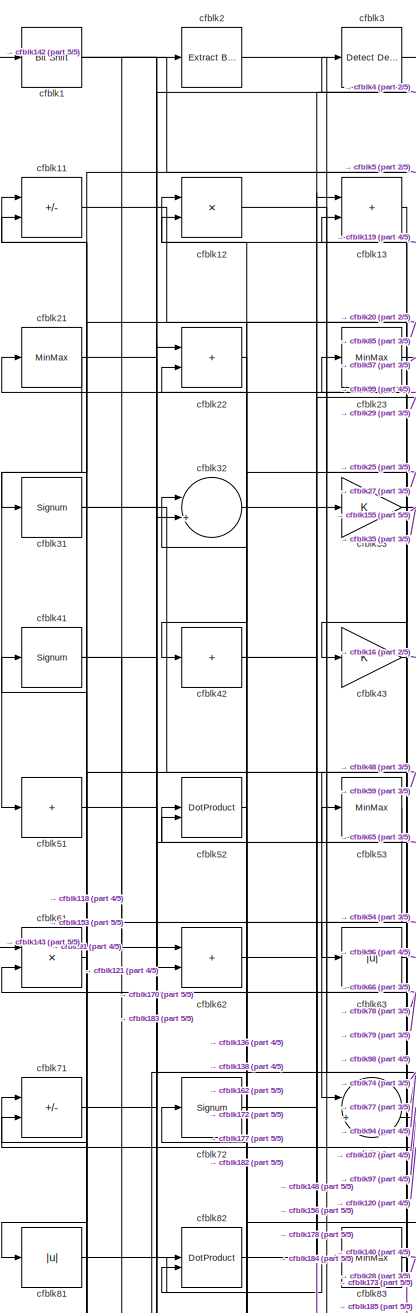
[diagram: root canvas - part 1/5, top left region]
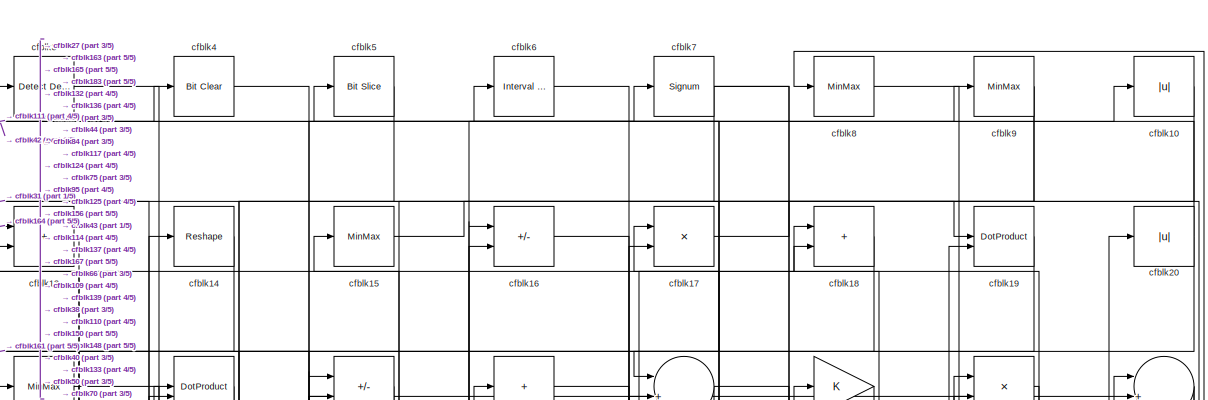
[diagram: root canvas - part 2/5, full width, top band]
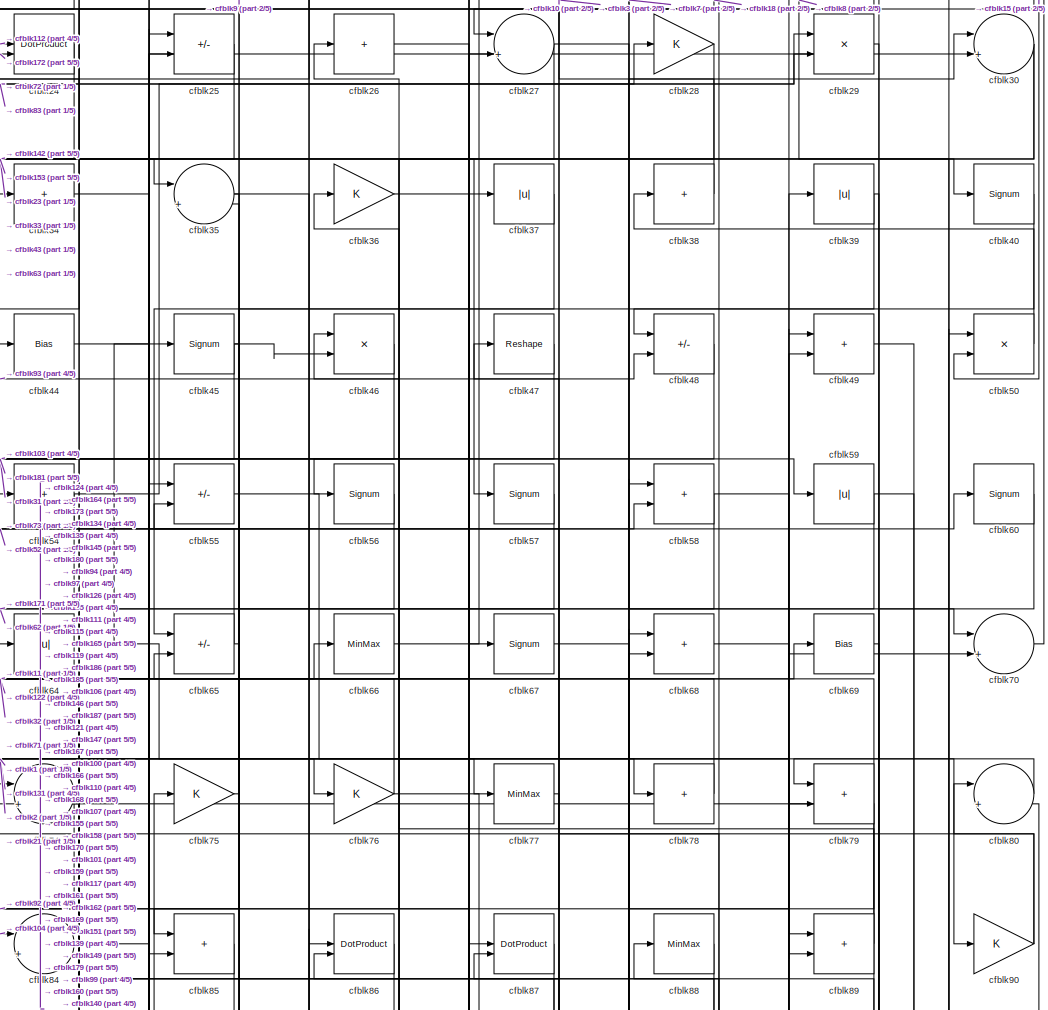
[diagram: root canvas - part 3/5, top center region]
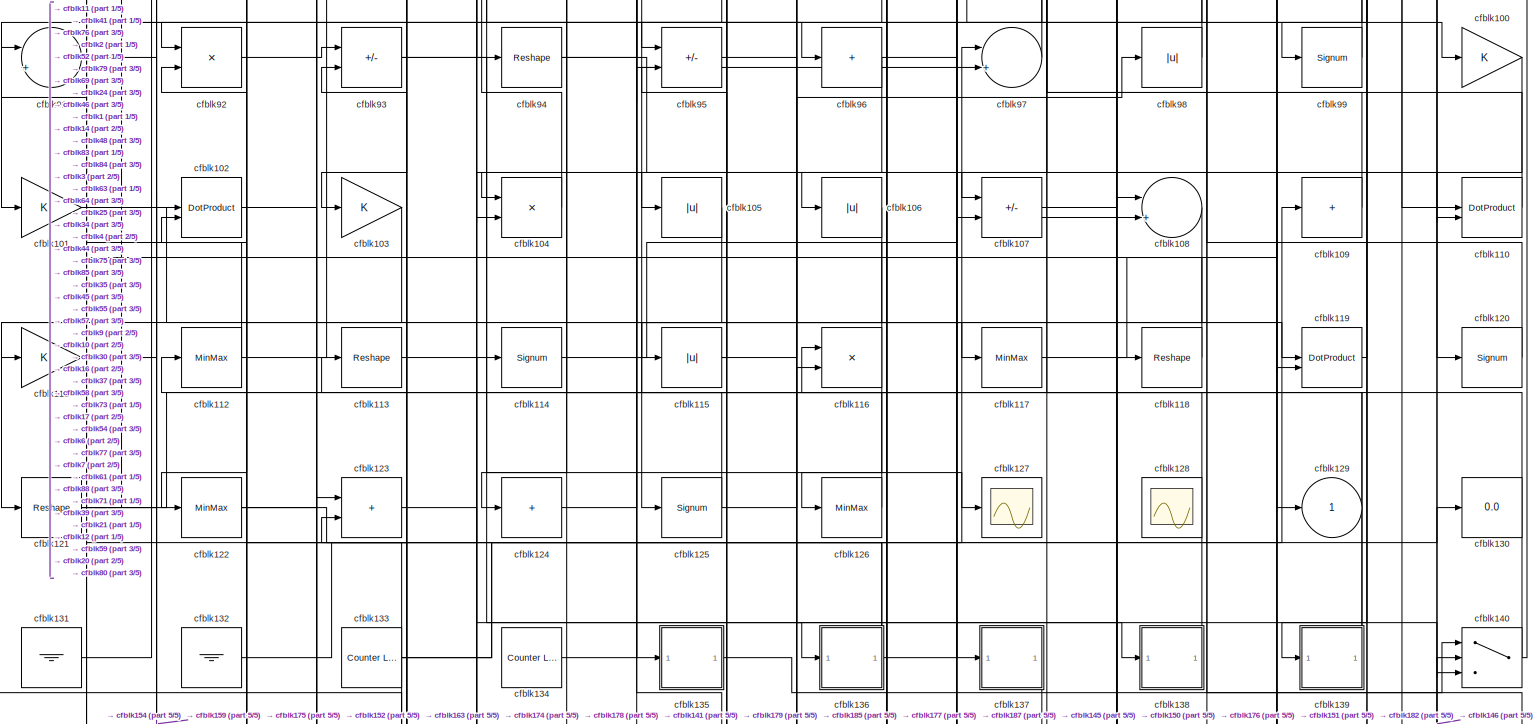
[diagram: root canvas - part 4/5, full width, middle band]
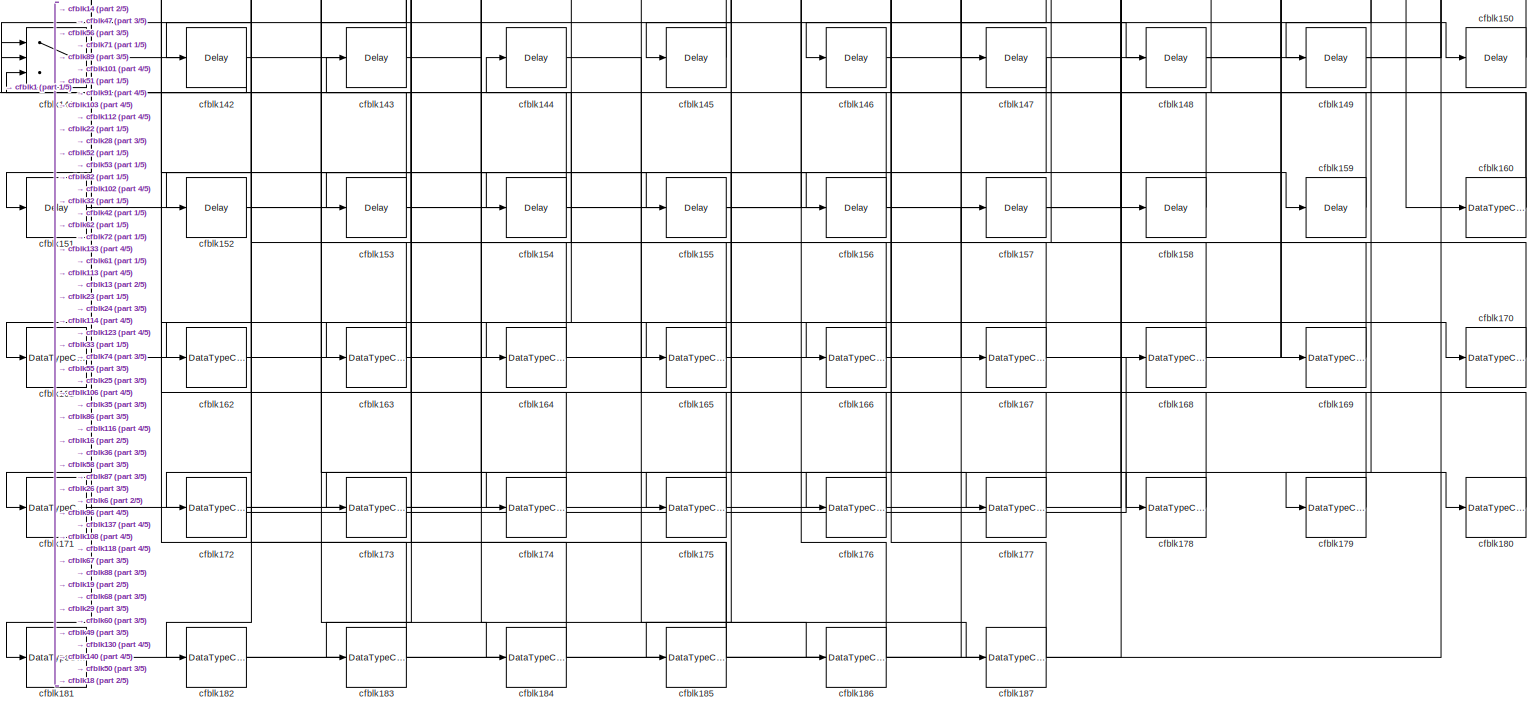
[diagram: root canvas - part 5/5, full width, bottom band]
MODEL slx_fcb4e1f6270d
KIND model
CONFIG AbsTol = auto
CONFIG EnableMultiTasking = off
CONFIG FixedStep = auto
CONFIG MaxStep = auto
CONFIG MinStep = auto
CONFIG RelTol = 1e-3
CONFIG SampleTimeConstraint = Unconstrained
CONFIG SolverName = VariableStepAuto
CONFIG StartTime = 0.0
CONFIG StopTime = 10.0
BLOCK [Reference] cfblk1  REF=hdlsllib/Logic and Bit
Operations/Bit Shift
  SourceBlock = hdlsllib/Logic and Bit\nOperations/Bit Shift
  SourceType = Bit Shift
BLOCK [Abs] cfblk10
  SaturateOnIntegerOverflow = off
BLOCK [Gain] cfblk100
BLOCK [Gain] cfblk101
BLOCK [DotProduct] cfblk102
  OutDataTypeStr = Inherit: Inherit via internal rule
BLOCK [Gain] cfblk103
BLOCK [Product] cfblk104
  Inputs = */
  RndMeth = Zero
  SaturateOnIntegerOverflow = on
BLOCK [Abs] cfblk105
  SaturateOnIntegerOverflow = off
BLOCK [Abs] cfblk106
  SaturateOnIntegerOverflow = off
BLOCK [Sum] cfblk107
  IconShape = rectangular
  Inputs = +-
BLOCK [Sum] cfblk108
  Inputs = |++
BLOCK [Sum] cfblk109
  IconShape = rectangular
  Inputs = +
BLOCK [Sum] cfblk11
  IconShape = rectangular
  Inputs = +-
BLOCK [DotProduct] cfblk110
  OutDataTypeStr = Inherit: Inherit via internal rule
BLOCK [Gain] cfblk111
BLOCK [MinMax] cfblk112
BLOCK [Reshape] cfblk113
BLOCK [Signum] cfblk114
BLOCK [Abs] cfblk115
  SaturateOnIntegerOverflow = off
BLOCK [Product] cfblk116
  Inputs = */
  RndMeth = Zero
  SaturateOnIntegerOverflow = on
BLOCK [MinMax] cfblk117
BLOCK [Reshape] cfblk118
BLOCK [DotProduct] cfblk119
  OutDataTypeStr = Inherit: Inherit via internal rule
BLOCK [Product] cfblk12
  Inputs = */
  RndMeth = Zero
  SaturateOnIntegerOverflow = on
BLOCK [Signum] cfblk120
BLOCK [Reshape] cfblk121
BLOCK [MinMax] cfblk122
BLOCK [Sum] cfblk123
  IconShape = rectangular
BLOCK [Sum] cfblk124
  IconShape = rectangular
  Inputs = +
BLOCK [Signum] cfblk125
BLOCK [MinMax] cfblk126
BLOCK [Scope] cfblk127
  Floating = off
  NumInputPorts = 1
  ScopeSpecificationString = Simulink.scopes.TimeScopeBlockCfg('CurrentConfiguration', extmgr.ConfigurationSet(extmgr.Configuration('Core','General UI',true),extmgr.Configuration('Core','Source UI',true),extmgr.Configuration('Sources','WiredSimulink',true,'DataLoggingVariableName','ScopeData2','DataLoggingSaveFormat','Array','DataLoggingLimitDataPoints',true,'DataLoggingDecimation','1'),extmgr.Configuration('Visuals','Time Do...<+868ch>
BLOCK [Scope] cfblk128
  Floating = on
  NumInputPorts = 1
  ScopeSpecificationString = Simulink.scopes.TimeScopeBlockCfg('CurrentConfiguration', extmgr.ConfigurationSet(extmgr.Configuration('Core','General UI',true,'FigureColor',[0.156862745098039 0.156862745098039 0.156862745098039]),extmgr.Configuration('Core','Source UI',true),extmgr.Configuration('Sources','WiredSimulink',true,'DataLoggingVariableName','ScopeData1','DataLoggingSaveFormat','StructureWithTime','DataLoggingLimitDat...<+2713ch>
BLOCK [Outport] cfblk129
  VectorParamsAs1DForOutWhenUnconnected = off
BLOCK [Sum] cfblk13
  IconShape = rectangular
BLOCK [Display] cfblk130
  Decimation = 1
BLOCK [Ground] cfblk131
BLOCK [Ground] cfblk132
BLOCK [Reference] cfblk133  REF=hdlsllib/Sources/Counter
Limited
  SourceBlock = hdlsllib/Sources/Counter\nLimited
  SourceType = Counter Limited
BLOCK [Reference] cfblk134  REF=hdlsllib/Sources/Counter
Limited
  SourceBlock = hdlsllib/Sources/Counter\nLimited
  SourceType = Counter Limited
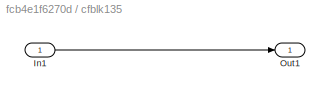
BLOCK [SubSystem] cfblk135
  LibrarySourceBlock = hdlsllib/Ports &\nSubsystems/Subsystem
BLOCK [Inport] cfblk135/In1
BLOCK [Outport] cfblk135/Out1
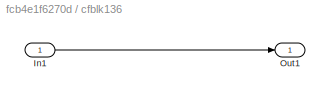
BLOCK [SubSystem] cfblk136
  LibrarySourceBlock = hdlsllib/Ports &\nSubsystems/Subsystem
BLOCK [Inport] cfblk136/In1
BLOCK [Outport] cfblk136/Out1
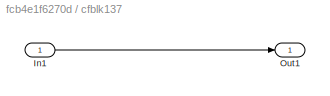
BLOCK [SubSystem] cfblk137
  LibrarySourceBlock = hdlsllib/Ports &\nSubsystems/Subsystem
BLOCK [Inport] cfblk137/In1
BLOCK [Outport] cfblk137/Out1
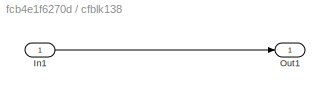
BLOCK [SubSystem] cfblk138
  LibrarySourceBlock = hdlsllib/Ports &\nSubsystems/Subsystem
BLOCK [Inport] cfblk138/In1
BLOCK [Outport] cfblk138/Out1
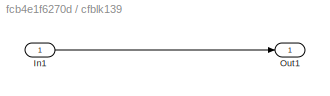
BLOCK [SubSystem] cfblk139
  LibrarySourceBlock = hdlsllib/Ports &\nSubsystems/Subsystem
BLOCK [Inport] cfblk139/In1
BLOCK [Outport] cfblk139/Out1
BLOCK [Reshape] cfblk14
BLOCK [Switch] cfblk140
  InputSameDT = off
  SaturateOnIntegerOverflow = off
BLOCK [Switch] cfblk141
  InputSameDT = off
  SaturateOnIntegerOverflow = off
BLOCK [Delay] cfblk142
  InputPortMap = u0
  SampleTime = 1
BLOCK [Delay] cfblk143
  InputPortMap = u0
  SampleTime = 1
BLOCK [Delay] cfblk144
  InputPortMap = u0
  SampleTime = 1
BLOCK [Delay] cfblk145
  InputPortMap = u0
  SampleTime = 1
BLOCK [Delay] cfblk146
  InputPortMap = u0
  SampleTime = 1
BLOCK [Delay] cfblk147
  InputPortMap = u0
  SampleTime = 1
BLOCK [Delay] cfblk148
  InputPortMap = u0
  SampleTime = 1
BLOCK [Delay] cfblk149
  InputPortMap = u0
  SampleTime = 1
BLOCK [MinMax] cfblk15
BLOCK [Delay] cfblk150
  InputPortMap = u0
  SampleTime = 1
BLOCK [Delay] cfblk151
  InputPortMap = u0
  SampleTime = 1
BLOCK [Delay] cfblk152
  InputPortMap = u0
  SampleTime = 1
BLOCK [Delay] cfblk153
  InputPortMap = u0
  SampleTime = 1
BLOCK [Delay] cfblk154
  InputPortMap = u0
  SampleTime = 1
BLOCK [Delay] cfblk155
  InputPortMap = u0
  SampleTime = 1
BLOCK [Delay] cfblk156
  InputPortMap = u0
  SampleTime = 1
BLOCK [Delay] cfblk157
  InputPortMap = u0
  SampleTime = 1
BLOCK [Delay] cfblk158
  InputPortMap = u0
  SampleTime = 1
BLOCK [Delay] cfblk159
  InputPortMap = u0
  SampleTime = 1
BLOCK [Sum] cfblk16
  IconShape = rectangular
  Inputs = +-
BLOCK [DataTypeConversion] cfblk160
  RndMeth = Floor
  SaturateOnIntegerOverflow = off
BLOCK [DataTypeConversion] cfblk161
  OutDataTypeStr = uint8
  RndMeth = Floor
  SaturateOnIntegerOverflow = off
BLOCK [DataTypeConversion] cfblk162
  OutDataTypeStr = uint8
  RndMeth = Floor
  SaturateOnIntegerOverflow = off
BLOCK [DataTypeConversion] cfblk163
  OutDataTypeStr = uint8
  RndMeth = Floor
  SaturateOnIntegerOverflow = off
BLOCK [DataTypeConversion] cfblk164
  OutDataTypeStr = uint8
  RndMeth = Floor
  SaturateOnIntegerOverflow = off
BLOCK [DataTypeConversion] cfblk165
  OutDataTypeStr = uint8
  RndMeth = Floor
  SaturateOnIntegerOverflow = off
BLOCK [DataTypeConversion] cfblk166
  OutDataTypeStr = uint8
  RndMeth = Floor
  SaturateOnIntegerOverflow = off
BLOCK [DataTypeConversion] cfblk167
  OutDataTypeStr = uint8
  RndMeth = Floor
  SaturateOnIntegerOverflow = off
BLOCK [DataTypeConversion] cfblk168
  OutDataTypeStr = uint8
  RndMeth = Floor
  SaturateOnIntegerOverflow = off
BLOCK [DataTypeConversion] cfblk169
  OutDataTypeStr = uint8
  RndMeth = Floor
  SaturateOnIntegerOverflow = off
BLOCK [Product] cfblk17
  Inputs = */
  RndMeth = Zero
  SaturateOnIntegerOverflow = on
BLOCK [DataTypeConversion] cfblk170
  OutDataTypeStr = uint8
  RndMeth = Floor
  SaturateOnIntegerOverflow = off
BLOCK [DataTypeConversion] cfblk171
  OutDataTypeStr = uint8
  RndMeth = Floor
  SaturateOnIntegerOverflow = off
BLOCK [DataTypeConversion] cfblk172
  RndMeth = Floor
  SaturateOnIntegerOverflow = off
BLOCK [DataTypeConversion] cfblk173
  OutDataTypeStr = uint8
  RndMeth = Floor
  SaturateOnIntegerOverflow = off
BLOCK [DataTypeConversion] cfblk174
  OutDataTypeStr = uint8
  RndMeth = Floor
  SaturateOnIntegerOverflow = off
BLOCK [DataTypeConversion] cfblk175
  OutDataTypeStr = uint8
  RndMeth = Floor
  SaturateOnIntegerOverflow = off
BLOCK [DataTypeConversion] cfblk176
  OutDataTypeStr = uint8
  RndMeth = Floor
  SaturateOnIntegerOverflow = off
BLOCK [DataTypeConversion] cfblk177
  OutDataTypeStr = uint8
  RndMeth = Floor
  SaturateOnIntegerOverflow = off
BLOCK [DataTypeConversion] cfblk178
  OutDataTypeStr = uint8
  RndMeth = Floor
  SaturateOnIntegerOverflow = off
BLOCK [DataTypeConversion] cfblk179
  OutDataTypeStr = uint8
  RndMeth = Floor
  SaturateOnIntegerOverflow = off
BLOCK [Sum] cfblk18
  IconShape = rectangular
BLOCK [DataTypeConversion] cfblk180
  OutDataTypeStr = uint8
  RndMeth = Floor
  SaturateOnIntegerOverflow = off
BLOCK [DataTypeConversion] cfblk181
  OutDataTypeStr = uint8
  RndMeth = Floor
  SaturateOnIntegerOverflow = off
BLOCK [DataTypeConversion] cfblk182
  OutDataTypeStr = uint8
  RndMeth = Floor
  SaturateOnIntegerOverflow = off
BLOCK [DataTypeConversion] cfblk183
  OutDataTypeStr = uint8
  RndMeth = Floor
  SaturateOnIntegerOverflow = off
BLOCK [DataTypeConversion] cfblk184
  OutDataTypeStr = uint8
  RndMeth = Floor
  SaturateOnIntegerOverflow = off
BLOCK [DataTypeConversion] cfblk185
  RndMeth = Floor
  SaturateOnIntegerOverflow = off
BLOCK [DataTypeConversion] cfblk186
  OutDataTypeStr = uint8
  RndMeth = Floor
  SaturateOnIntegerOverflow = off
BLOCK [DataTypeConversion] cfblk187
  OutDataTypeStr = uint8
  RndMeth = Floor
  SaturateOnIntegerOverflow = off
BLOCK [DotProduct] cfblk19
  OutDataTypeStr = Inherit: Inherit via internal rule
BLOCK [Reference] cfblk2  REF=simulink/Logic and Bit
Operations/Extract Bits
  LibrarySourceBlock = hdlsllib/Logic and Bit\nOperations/Extract Bits
  SourceBlock = simulink/Logic and Bit\nOperations/Extract Bits
  SourceType = Extract Bits
BLOCK [Abs] cfblk20
  SaturateOnIntegerOverflow = off
BLOCK [MinMax] cfblk21
BLOCK [Sum] cfblk22
  IconShape = rectangular
BLOCK [MinMax] cfblk23
BLOCK [DotProduct] cfblk24
  OutDataTypeStr = Inherit: Inherit via internal rule
BLOCK [Sum] cfblk25
  IconShape = rectangular
  Inputs = +-
BLOCK [Sum] cfblk26
  IconShape = rectangular
  Inputs = +
BLOCK [Sum] cfblk27
  Inputs = |++
BLOCK [Gain] cfblk28
BLOCK [Product] cfblk29
  Inputs = */
  RndMeth = Zero
  SaturateOnIntegerOverflow = on
BLOCK [Reference] cfblk3  REF=simulink/Logic and Bit
Operations/Detect
Decrease
  LibrarySourceBlock = hdlsllib/Logic and Bit\nOperations/Detect\nDecrease
  SourceBlock = simulink/Logic and Bit\nOperations/Detect\nDecrease
  SourceType = Detect Decrease
BLOCK [Sum] cfblk30
  Inputs = |++
BLOCK [Signum] cfblk31
BLOCK [Sum] cfblk32
  Inputs = |++
BLOCK [Gain] cfblk33
BLOCK [Sum] cfblk34
  IconShape = rectangular
  Inputs = +
BLOCK [Sum] cfblk35
  Inputs = |++
BLOCK [Gain] cfblk36
BLOCK [Abs] cfblk37
  SaturateOnIntegerOverflow = off
BLOCK [Sum] cfblk38
  IconShape = rectangular
  Inputs = +
BLOCK [Abs] cfblk39
  SaturateOnIntegerOverflow = off
BLOCK [Reference] cfblk4  REF=simulink/Logic and Bit
Operations/Bit Clear
  LibrarySourceBlock = hdlsllib/Logic and Bit\nOperations/Bit Clear
  SourceBlock = simulink/Logic and Bit\nOperations/Bit Clear
  SourceType = Bit Clear
BLOCK [Signum] cfblk40
BLOCK [Signum] cfblk41
BLOCK [Sum] cfblk42
  IconShape = rectangular
  Inputs = +
BLOCK [Gain] cfblk43
BLOCK [Bias] cfblk44
  Bias = 0.0
  SaturateOnIntegerOverflow = off
BLOCK [Signum] cfblk45
BLOCK [Product] cfblk46
  Inputs = */
  RndMeth = Zero
  SaturateOnIntegerOverflow = on
BLOCK [Reshape] cfblk47
BLOCK [Sum] cfblk48
  IconShape = rectangular
  Inputs = +-
BLOCK [Sum] cfblk49
  IconShape = rectangular
BLOCK [Reference] cfblk5  REF=hdlsllib/Logic and Bit
Operations/Bit Slice
  SourceBlock = hdlsllib/Logic and Bit\nOperations/Bit Slice
  SourceType = Bit Slice
BLOCK [Product] cfblk50
  Inputs = */
  RndMeth = Zero
  SaturateOnIntegerOverflow = on
BLOCK [Sum] cfblk51
  IconShape = rectangular
  Inputs = +
BLOCK [DotProduct] cfblk52
  OutDataTypeStr = Inherit: Inherit via internal rule
BLOCK [MinMax] cfblk53
BLOCK [Sum] cfblk54
  IconShape = rectangular
  Inputs = +
BLOCK [Sum] cfblk55
  IconShape = rectangular
  Inputs = +-
BLOCK [Signum] cfblk56
BLOCK [Signum] cfblk57
BLOCK [Sum] cfblk58
  IconShape = rectangular
BLOCK [Abs] cfblk59
  SaturateOnIntegerOverflow = off
BLOCK [Reference] cfblk6  REF=hdlsllib/Logic and Bit
Operations/Interval Test
  SourceBlock = hdlsllib/Logic and Bit\nOperations/Interval Test
  SourceType = Interval Test
BLOCK [Signum] cfblk60
BLOCK [Product] cfblk61
  Inputs = */
  RndMeth = Zero
  SaturateOnIntegerOverflow = on
BLOCK [Sum] cfblk62
  IconShape = rectangular
BLOCK [Abs] cfblk63
  SaturateOnIntegerOverflow = off
BLOCK [Abs] cfblk64
  SaturateOnIntegerOverflow = off
BLOCK [Sum] cfblk65
  IconShape = rectangular
  Inputs = +-
BLOCK [MinMax] cfblk66
BLOCK [Signum] cfblk67
BLOCK [Sum] cfblk68
  IconShape = rectangular
BLOCK [Bias] cfblk69
  Bias = 0.0
  SaturateOnIntegerOverflow = off
BLOCK [Signum] cfblk7
BLOCK [Sum] cfblk70
  Inputs = |++
BLOCK [Sum] cfblk71
  IconShape = rectangular
  Inputs = +-
BLOCK [Signum] cfblk72
BLOCK [Sum] cfblk73
  Inputs = |++
BLOCK [Sum] cfblk74
  Inputs = |++
BLOCK [Gain] cfblk75
BLOCK [Gain] cfblk76
BLOCK [MinMax] cfblk77
BLOCK [Sum] cfblk78
  IconShape = rectangular
  Inputs = +
BLOCK [Sum] cfblk79
  IconShape = rectangular
BLOCK [MinMax] cfblk8
BLOCK [Sum] cfblk80
  Inputs = |++
BLOCK [Abs] cfblk81
  SaturateOnIntegerOverflow = off
BLOCK [DotProduct] cfblk82
  OutDataTypeStr = Inherit: Inherit via internal rule
BLOCK [MinMax] cfblk83
BLOCK [Sum] cfblk84
  Inputs = |++
BLOCK [Sum] cfblk85
  IconShape = rectangular
BLOCK [DotProduct] cfblk86
  OutDataTypeStr = Inherit: Inherit via internal rule
BLOCK [DotProduct] cfblk87
  OutDataTypeStr = Inherit: Inherit via internal rule
BLOCK [MinMax] cfblk88
BLOCK [Sum] cfblk89
  IconShape = rectangular
BLOCK [MinMax] cfblk9
BLOCK [Gain] cfblk90
BLOCK [Sum] cfblk91
  Inputs = |++
BLOCK [Product] cfblk92
  Inputs = */
  RndMeth = Zero
  SaturateOnIntegerOverflow = on
BLOCK [Sum] cfblk93
  IconShape = rectangular
  Inputs = +-
BLOCK [Reshape] cfblk94
BLOCK [Sum] cfblk95
  IconShape = rectangular
  Inputs = +-
BLOCK [Sum] cfblk96
  IconShape = rectangular
  Inputs = +
BLOCK [Sum] cfblk97
  Inputs = |++
BLOCK [Abs] cfblk98
  SaturateOnIntegerOverflow = off
BLOCK [Signum] cfblk99
LINE cfblk100:1 -> cfblk104:1
NET cfblk101:1 -> cfblk119:1, cfblk159:1
LINE cfblk102:1 -> cfblk174:1
LINE cfblk103:1 -> cfblk152:1
LINE cfblk104:1 -> cfblk84:1
LINE cfblk105:1 -> cfblk125:1
LINE cfblk106:1 -> cfblk145:1
LINE cfblk107:1 -> cfblk30:1
LINE cfblk108:1 -> cfblk121:1
LINE cfblk109:1 -> cfblk6:1
LINE cfblk10:1 -> cfblk27:1
LINE cfblk110:1 -> cfblk54:1
LINE cfblk111:1 -> cfblk9:1
NET cfblk112:1 -> cfblk24:1, cfblk91:1
LINE cfblk113:1 -> cfblk187:1
LINE cfblk114:1 -> cfblk17:2
NET cfblk115:1 -> cfblk55:2, cfblk98:1
NET cfblk116:1 -> cfblk126:1, cfblk95:2
LINE cfblk117:1 -> cfblk39:1
LINE cfblk118:1 -> cfblk41:1
LINE cfblk119:1 -> cfblk12:1
LINE cfblk11:1 -> cfblk85:2
LINE cfblk120:1 -> cfblk71:1
NET cfblk121:1 -> cfblk2:1, cfblk37:1, cfblk58:2
NET cfblk122:1 -> cfblk109:1, cfblk69:1
LINE cfblk123:1 -> cfblk177:1
LINE cfblk124:1 -> cfblk7:1
NET cfblk125:1 -> cfblk10:1, cfblk93:2
LINE cfblk126:1 -> cfblk75:1
LINE cfblk12:1 -> cfblk120:1
LINE cfblk131:1 -> cfblk76:1
LINE cfblk132:1 -> cfblk14:1
NET cfblk133:1 -> cfblk141:2, cfblk20:1, cfblk91:2, cfblk97:1
LINE cfblk134:1 -> cfblk30:2
LINE cfblk135/In1:1 -> cfblk135/Out1:1
LINE cfblk135:1 -> cfblk140:1
LINE cfblk136/In1:1 -> cfblk136/Out1:1
NET cfblk136:1 -> cfblk108:2, cfblk12:2, cfblk92:2
LINE cfblk137/In1:1 -> cfblk137/Out1:1
LINE cfblk137:1 -> cfblk176:1
LINE cfblk138/In1:1 -> cfblk138/Out1:1
LINE cfblk138:1 -> cfblk52:2
LINE cfblk139/In1:1 -> cfblk139/Out1:1
NET cfblk139:1 -> cfblk17:1, cfblk64:1
LINE cfblk13:1 -> cfblk163:1
NET cfblk140:1 -> cfblk116:1, cfblk80:2
LINE cfblk141:1 -> cfblk114:1
LINE cfblk142:1 -> cfblk1:1
LINE cfblk143:1 -> cfblk61:1
LINE cfblk144:1 -> cfblk186:1
LINE cfblk145:1 -> cfblk25:1
LINE cfblk146:1 -> cfblk140:2
LINE cfblk147:1 -> cfblk175:1
LINE cfblk148:1 -> cfblk19:2
LINE cfblk149:1 -> cfblk50:1
LINE cfblk14:1 -> cfblk161:1
LINE cfblk150:1 -> cfblk18:2
LINE cfblk151:1 -> cfblk108:1
LINE cfblk152:1 -> cfblk116:2
LINE cfblk153:1 -> cfblk71:2
LINE cfblk154:1 -> cfblk141:1
LINE cfblk155:1 -> cfblk58:1
LINE cfblk156:1 -> cfblk16:1
LINE cfblk157:1 -> cfblk180:1
LINE cfblk158:1 -> cfblk36:1
LINE cfblk159:1 -> cfblk88:1
LINE cfblk15:1 -> cfblk50:2
NET cfblk160:1 -> cfblk141:3, cfblk26:1
LINE cfblk161:1 -> cfblk49:1
LINE cfblk162:1 -> cfblk49:2
LINE cfblk163:1 -> cfblk112:1
LINE cfblk164:1 -> cfblk13:1
LINE cfblk165:1 -> cfblk13:2
LINE cfblk166:1 -> cfblk143:1
LINE cfblk167:1 -> cfblk87:1
LINE cfblk168:1 -> cfblk87:2
LINE cfblk169:1 -> cfblk144:1
LINE cfblk16:1 -> cfblk137:1
LINE cfblk170:1 -> cfblk68:1
LINE cfblk171:1 -> cfblk68:2
NET cfblk172:1 -> cfblk168:1, cfblk24:2
LINE cfblk173:1 -> cfblk53:1
LINE cfblk174:1 -> cfblk113:1
LINE cfblk175:1 -> cfblk102:1
LINE cfblk176:1 -> cfblk102:2
LINE cfblk177:1 -> cfblk72:1
LINE cfblk178:1 -> cfblk123:1
LINE cfblk179:1 -> cfblk123:2
LINE cfblk17:1 -> cfblk19:1
LINE cfblk180:1 -> cfblk55:1
LINE cfblk181:1 -> cfblk157:1
LINE cfblk182:1 -> cfblk118:1
LINE cfblk183:1 -> cfblk22:1
LINE cfblk184:1 -> cfblk22:2
NET cfblk185:1 -> cfblk130:1, cfblk23:1, cfblk82:2
LINE cfblk186:1 -> cfblk86:1
LINE cfblk187:1 -> cfblk86:2
LINE cfblk18:1 -> cfblk34:1
LINE cfblk19:1 -> cfblk183:1
NET cfblk1:1 -> cfblk74:1, cfblk79:2, cfblk94:1
NET cfblk20:1 -> cfblk42:1, cfblk5:1
NET cfblk21:1 -> cfblk51:1, cfblk77:1
LINE cfblk22:1 -> cfblk182:1
LINE cfblk23:1 -> cfblk57:1
LINE cfblk24:1 -> cfblk153:1
LINE cfblk25:1 -> cfblk43:1
LINE cfblk26:1 -> cfblk147:1
NET cfblk27:1 -> cfblk63:1, cfblk89:2
LINE cfblk28:1 -> cfblk142:1
LINE cfblk29:1 -> cfblk149:1
LINE cfblk2:1 -> cfblk78:1
NET cfblk30:1 -> cfblk106:1, cfblk56:1
NET cfblk31:1 -> cfblk32:2, cfblk59:1
LINE cfblk32:1 -> cfblk184:1
NET cfblk33:1 -> cfblk155:1, cfblk35:1
LINE cfblk34:1 -> cfblk97:2
NET cfblk35:1 -> cfblk119:2, cfblk165:1
LINE cfblk36:1 -> cfblk67:1
LINE cfblk37:1 -> cfblk85:1
LINE cfblk38:1 -> cfblk3:1
NET cfblk39:1 -> cfblk139:1, cfblk48:1
LINE cfblk3:1 -> cfblk136:1
LINE cfblk40:1 -> cfblk65:1
NET cfblk41:1 -> cfblk62:1, cfblk82:1
NET cfblk42:1 -> cfblk178:1, cfblk4:1
LINE cfblk43:1 -> cfblk16:2
LINE cfblk44:1 -> cfblk135:1
NET cfblk45:1 -> cfblk105:1, cfblk111:1, cfblk46:2
LINE cfblk46:1 -> cfblk103:1
LINE cfblk47:1 -> cfblk181:1
LINE cfblk48:1 -> cfblk73:1
LINE cfblk49:1 -> cfblk160:1
LINE cfblk4:1 -> cfblk117:1
LINE cfblk50:1 -> cfblk38:1
LINE cfblk51:1 -> cfblk170:1
LINE cfblk52:1 -> cfblk162:1
LINE cfblk53:1 -> cfblk172:1
NET cfblk54:1 -> cfblk29:1, cfblk62:2
LINE cfblk55:1 -> cfblk90:1
LINE cfblk56:1 -> cfblk171:1
LINE cfblk57:1 -> cfblk115:1
NET cfblk58:1 -> cfblk146:1, cfblk70:2
NET cfblk59:1 -> cfblk110:1, cfblk124:1
LINE cfblk5:1 -> cfblk31:1
LINE cfblk60:1 -> cfblk179:1
LINE cfblk61:1 -> cfblk81:1
LINE cfblk62:1 -> cfblk156:1
LINE cfblk63:1 -> cfblk96:1
NET cfblk64:1 -> cfblk45:1, cfblk89:1
NET cfblk65:1 -> cfblk35:2, cfblk52:1
LINE cfblk66:1 -> cfblk18:1
LINE cfblk67:1 -> cfblk158:1
LINE cfblk68:1 -> cfblk169:1
LINE cfblk69:1 -> cfblk99:1
LINE cfblk6:1 -> cfblk167:1
LINE cfblk70:1 -> cfblk8:1
LINE cfblk71:1 -> cfblk66:1
NET cfblk72:1 -> cfblk148:1, cfblk29:2
NET cfblk73:1 -> cfblk107:2, cfblk27:2
NET cfblk74:1 -> cfblk164:1, cfblk173:1
LINE cfblk75:1 -> cfblk15:1
NET cfblk76:1 -> cfblk100:1, cfblk65:2
LINE cfblk77:1 -> cfblk107:1
LINE cfblk78:1 -> cfblk11:1
NET cfblk79:1 -> cfblk32:1, cfblk92:1
NET cfblk7:1 -> cfblk110:2, cfblk70:1, cfblk84:2
LINE cfblk80:1 -> cfblk79:1
LINE cfblk81:1 -> cfblk83:1
LINE cfblk82:1 -> cfblk33:1
NET cfblk83:1 -> cfblk140:3, cfblk28:1
LINE cfblk84:1 -> cfblk60:1
LINE cfblk85:1 -> cfblk122:1
LINE cfblk86:1 -> cfblk185:1
LINE cfblk87:1 -> cfblk166:1
LINE cfblk88:1 -> cfblk101:1
NET cfblk89:1 -> cfblk151:1, cfblk46:1, cfblk74:2
LINE cfblk8:1 -> cfblk40:1
NET cfblk90:1 -> cfblk47:1, cfblk80:1
NET cfblk91:1 -> cfblk11:2, cfblk154:1
LINE cfblk92:1 -> cfblk93:1
NET cfblk93:1 -> cfblk127:1, cfblk48:2
NET cfblk94:1 -> cfblk129:1, cfblk25:2
LINE cfblk95:1 -> cfblk138:1
NET cfblk96:1 -> cfblk104:2, cfblk150:1
LINE cfblk97:1 -> cfblk73:2
LINE cfblk98:1 -> cfblk61:2
LINE cfblk99:1 -> cfblk21:1
NET cfblk9:1 -> cfblk44:1, cfblk95:1
note: NET lines group one-source signal fan-out (src -> all destinations, sorted); 1:1 wires keep LINE
